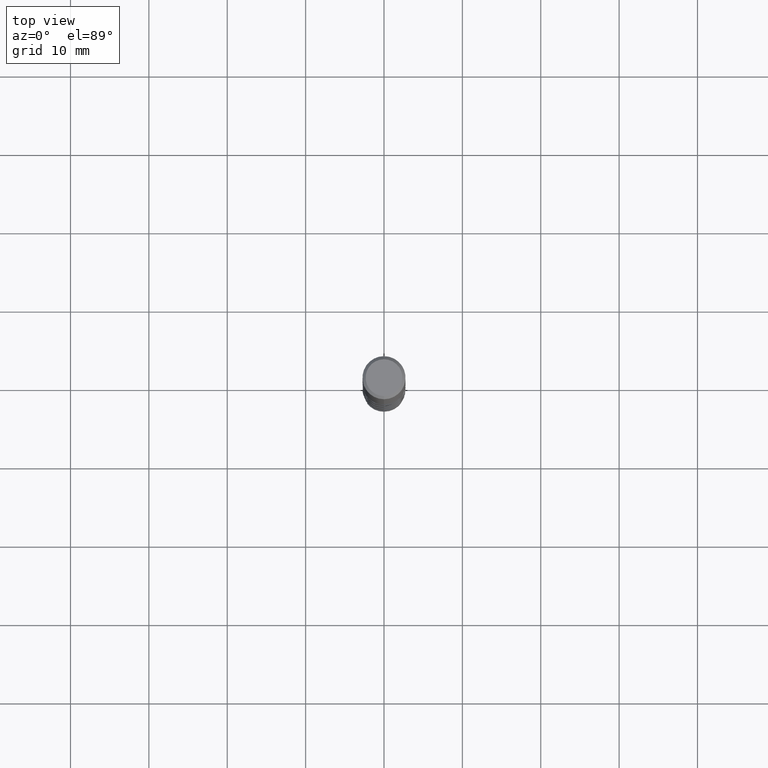
[diagram: clean part render]
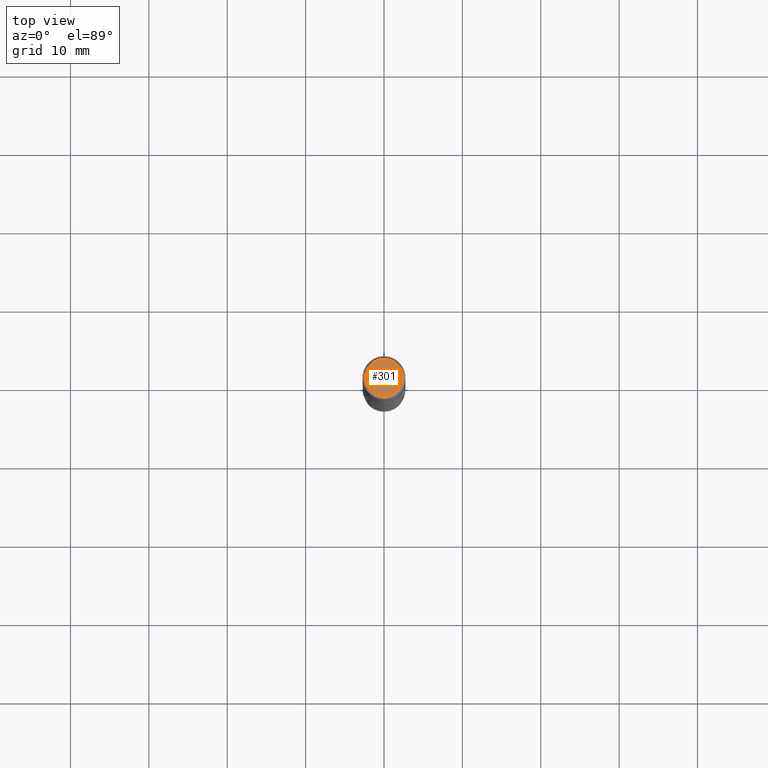
[diagram: same view with one face highlighted and labeled with its STEP entity id]
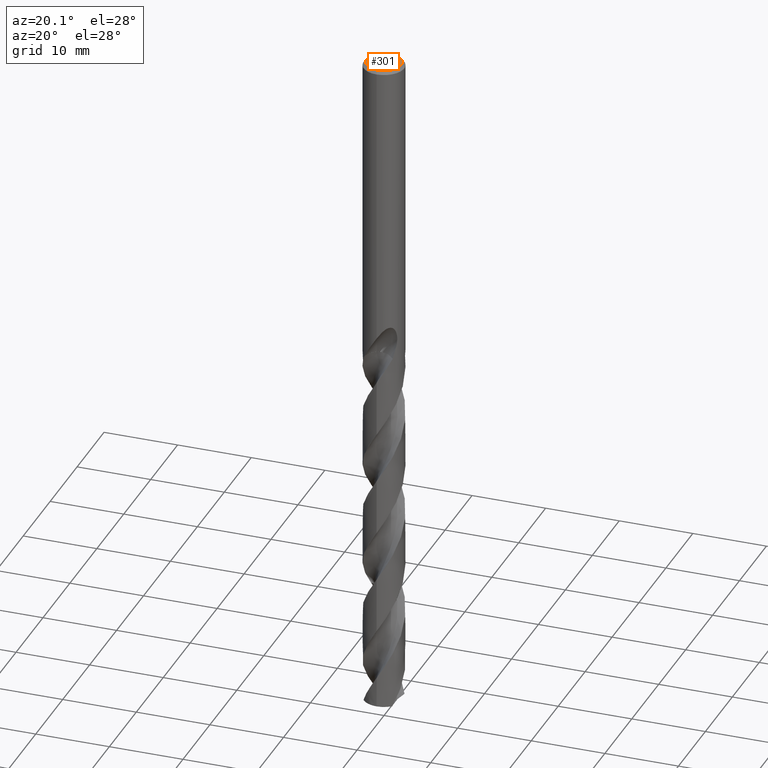
[diagram: same view with one face highlighted and labeled with its STEP entity id]
A machine part, top view. The second image highlights one B-rep face of the part: STEP entity #301.
A second angle (auxiliary view) of the same face is appended — the face is thin or edge-on in the first view.
In plain terms, the highlighted planar face has unit normal (-0, 0, 1).
Its self-contained STEP definition (entity closure, byte-faithful):
#301=ADVANCED_FACE('',(#803),#804,.T.);
#319=VERTEX_POINT('',#825);
#429=VERTEX_POINT('',#946);
#549=EDGE_CURVE('',#429,#319,#1074,.T.);
#561=EDGE_CURVE('',#319,#429,#1086,.T.);
#803=FACE_OUTER_BOUND('',#1897,.T.);
#804=PLANE('',#1898);
#825=CARTESIAN_POINT('',(0.0,2.35,0.0));
#946=CARTESIAN_POINT('',(2.87782493148259E-016,-2.35,0.0));
#1074=CIRCLE('',#5832,2.35);
#1086=CIRCLE('',#5849,2.35);
#1897=EDGE_LOOP('',(#8723,#8724));
#1898=AXIS2_PLACEMENT_3D('',#8725,#8726,#8727);
#5832=AXIS2_PLACEMENT_3D('',#9006,#9007,#9008);
#5849=AXIS2_PLACEMENT_3D('',#9016,#9017,#9018);
#8723=ORIENTED_EDGE('',*,*,#561,.F.);
#8724=ORIENTED_EDGE('',*,*,#549,.F.);
#8725=CARTESIAN_POINT('',(0.0,1.175,0.0));
#8726=DIRECTION('',(-0.0,0.0,1.0));
#8727=DIRECTION('',(0.0,-1.0,0.0));
#9006=CARTESIAN_POINT('',(0.0,0.0,0.0));
#9007=DIRECTION('',(0.0,0.0,-1.0));
#9008=DIRECTION('',(0.0,1.0,0.0));
#9016=CARTESIAN_POINT('',(0.0,0.0,0.0));
#9017=DIRECTION('',(0.0,0.0,-1.0));
#9018=DIRECTION('',(0.0,1.0,0.0));